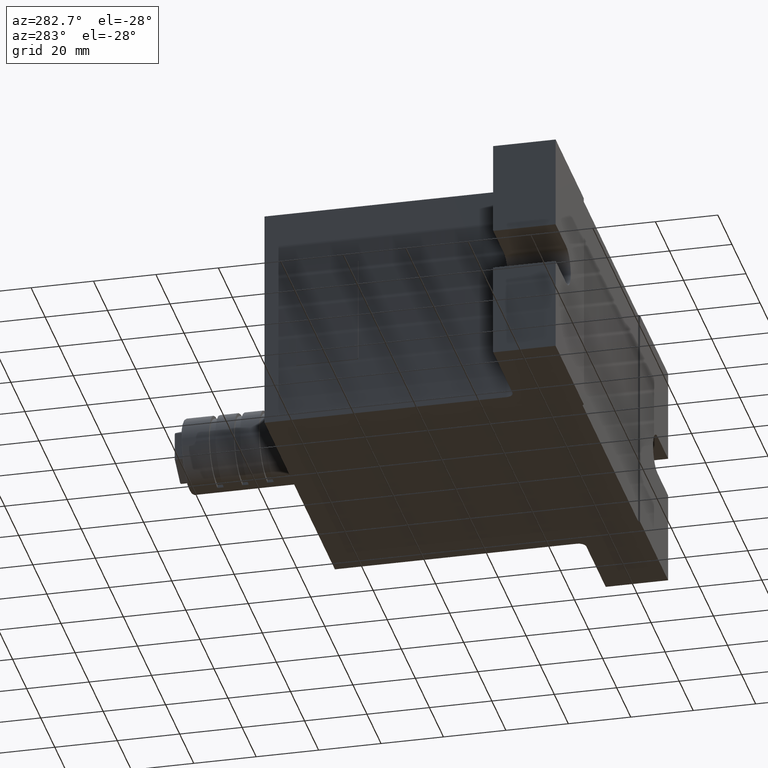
[diagram: clean part render]
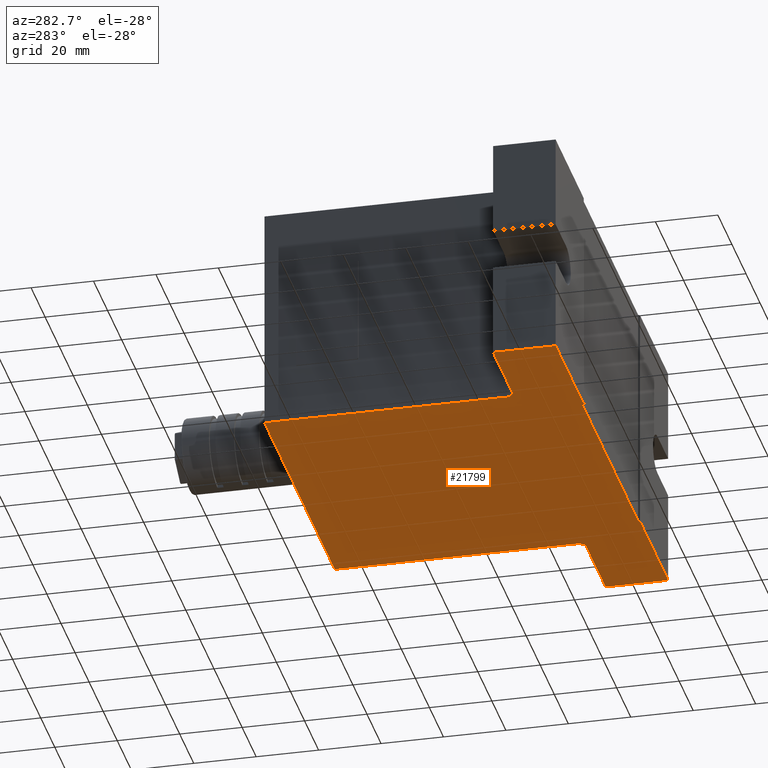
[diagram: same view with one face highlighted and labeled with its STEP entity id]
A machine part, auxiliary view. The second image highlights one B-rep face of the part: STEP entity #21799.
In plain terms, the highlighted planar face has unit normal (0, -0, -1).
Its self-contained STEP definition (entity closure, byte-faithful):
#341 = LINE ( 'NONE', #13127, #15238 ) ;
#428 = ORIENTED_EDGE ( 'NONE', *, *, #13379, .T. ) ;
#433 = VERTEX_POINT ( 'NONE', #16648 ) ;
#743 = LINE ( 'NONE', #1243, #6703 ) ;
#830 = ORIENTED_EDGE ( 'NONE', *, *, #16819, .T. ) ;
#927 = CARTESIAN_POINT ( 'NONE',  ( -80.00000000000000000, -50.00000000000000000, -36.50000000000007800 ) ) ;
#965 = VERTEX_POINT ( 'NONE', #21903 ) ;
#1243 = CARTESIAN_POINT ( 'NONE',  ( -50.00000000000000700, 50.00000000000000000, -36.50000000000000000 ) ) ;
#1269 = CARTESIAN_POINT ( 'NONE',  ( -52.49999999999999300, -30.00000000000000000, -36.50000000000000000 ) ) ;
#1616 = EDGE_CURVE ( 'NONE', #4111, #433, #22802, .T. ) ;
#1669 = ORIENTED_EDGE ( 'NONE', *, *, #17241, .F. ) ;
#1964 = ORIENTED_EDGE ( 'NONE', *, *, #4704, .F. ) ;
#2130 = LINE ( 'NONE', #5519, #11381 ) ;
#2271 = VECTOR ( 'NONE', #16634, 1000.000000000000000 ) ;
#2380 = VECTOR ( 'NONE', #4731, 1000.000000000000000 ) ;
#2673 = DIRECTION ( 'NONE',  ( 1.627025617018336800E-030, -8.801438384760311500E-031, -1.000000000000000000 ) ) ;
#3454 = DIRECTION ( 'NONE',  ( 1.000000000000000000, 0.0000000000000000000, 1.627025617018336800E-030 ) ) ;
#3532 = ORIENTED_EDGE ( 'NONE', *, *, #12460, .T. ) ;
#3611 = CARTESIAN_POINT ( 'NONE',  ( -52.49999999999999300, -27.50000000000000000, -36.50000000000000000 ) ) ;
#3699 = DIRECTION ( 'NONE',  ( 1.000000000000000000, 0.0000000000000000000, 1.627025617018336800E-030 ) ) ;
#4111 = VERTEX_POINT ( 'NONE', #927 ) ;
#4355 = DIRECTION ( 'NONE',  ( -1.000000000000000000, 0.0000000000000000000, -1.627025617018336800E-030 ) ) ;
#4428 = AXIS2_PLACEMENT_3D ( 'NONE', #22848, #11475, #15310 ) ;
#4704 = EDGE_CURVE ( 'NONE', #16450, #4111, #8230, .T. ) ;
#4731 = DIRECTION ( 'NONE',  ( 1.000000000000000000, 0.0000000000000000000, 1.627025617018336800E-030 ) ) ;
#5519 = CARTESIAN_POINT ( 'NONE',  ( 39.50000000000000700, -49.50000000000000000, -36.50000000000007800 ) ) ;
#5627 = VERTEX_POINT ( 'NONE', #6437 ) ;
#5783 = CARTESIAN_POINT ( 'NONE',  ( 80.00000000000000000, -30.00000000000000000, -36.50000000000000000 ) ) ;
#5792 = CIRCLE ( 'NONE', #4428, 2.500000000000002200 ) ;
#5812 = CARTESIAN_POINT ( 'NONE',  ( 49.99999999999999300, 50.00000000000017100, -36.50000000000007800 ) ) ;
#6227 = EDGE_CURVE ( 'NONE', #18773, #965, #6363, .T. ) ;
#6363 = LINE ( 'NONE', #19712, #18548 ) ;
#6437 = CARTESIAN_POINT ( 'NONE',  ( 50.00000000000000000, -27.50000000000000000, -36.50000000000007800 ) ) ;
#6465 = CARTESIAN_POINT ( 'NONE',  ( -50.00000000000000700, 50.00000000000000000, -36.50000000000000000 ) ) ;
#6585 = VERTEX_POINT ( 'NONE', #9883 ) ;
#6703 = VECTOR ( 'NONE', #18371, 1000.000000000000000 ) ;
#6755 = ORIENTED_EDGE ( 'NONE', *, *, #17231, .T. ) ;
#7226 = VECTOR ( 'NONE', #18817, 1000.000000000000000 ) ;
#7333 = DIRECTION ( 'NONE',  ( 0.0000000000000000000, -1.000000000000000000, -8.801438384760299300E-031 ) ) ;
#7995 = CARTESIAN_POINT ( 'NONE',  ( -39.99999999999999300, -50.00000000000000000, -36.50000000000000000 ) ) ;
#8230 = LINE ( 'NONE', #14887, #24563 ) ;
#8369 = CIRCLE ( 'NONE', #9540, 2.500000000000002200 ) ;
#9006 = LINE ( 'NONE', #15028, #7226 ) ;
#9508 = FACE_OUTER_BOUND ( 'NONE', #23698, .T. ) ;
#9540 = AXIS2_PLACEMENT_3D ( 'NONE', #3611, #14957, #24471 ) ;
#9565 = VERTEX_POINT ( 'NONE', #22486 ) ;
#9883 = CARTESIAN_POINT ( 'NONE',  ( 80.00000000000000000, -30.00000000000000000, -36.50000000000000000 ) ) ;
#10699 = CARTESIAN_POINT ( 'NONE',  ( 80.00000000000000000, -50.00000000000000000, -36.50000000000000000 ) ) ;
#11381 = VECTOR ( 'NONE', #14788, 1000.000000000000000 ) ;
#11475 = DIRECTION ( 'NONE',  ( 1.627025617018336800E-030, 8.801438384760311500E-031, 1.000000000000000000 ) ) ;
#11865 = PLANE ( 'NONE',  #19951 ) ;
#12169 = DIRECTION ( 'NONE',  ( -1.000000000000000000, -8.673617379884035500E-017, -1.700981326882806700E-030 ) ) ;
#12194 = VECTOR ( 'NONE', #17008, 1000.000000000000000 ) ;
#12353 = LINE ( 'NONE', #7995, #17115 ) ;
#12460 = EDGE_CURVE ( 'NONE', #9565, #23623, #743, .T. ) ;
#12816 = CARTESIAN_POINT ( 'NONE',  ( -80.00000000000000000, -50.00000000000000000, -36.50000000000007800 ) ) ;
#13113 = ORIENTED_EDGE ( 'NONE', *, *, #23822, .T. ) ;
#13127 = CARTESIAN_POINT ( 'NONE',  ( -80.00000000000000000, -50.00000000000000000, -36.50000000000007800 ) ) ;
#13194 = CARTESIAN_POINT ( 'NONE',  ( 80.00000000000000000, -50.00000000000000000, -36.50000000000000000 ) ) ;
#13265 = LINE ( 'NONE', #15612, #17982 ) ;
#13379 = EDGE_CURVE ( 'NONE', #965, #433, #12353, .T. ) ;
#13697 = DIRECTION ( 'NONE',  ( -1.000000000000000000, 0.0000000000000000000, -1.627025617018336800E-030 ) ) ;
#13878 = CARTESIAN_POINT ( 'NONE',  ( 40.00000000000000700, -50.00000000000000000, -36.50000000000007800 ) ) ;
#14190 = EDGE_CURVE ( 'NONE', #21968, #6585, #20645, .T. ) ;
#14297 = ORIENTED_EDGE ( 'NONE', *, *, #23860, .T. ) ;
#14788 = DIRECTION ( 'NONE',  ( -0.7071067811865670000, 0.7071067811865280300, -5.854827030937197000E-031 ) ) ;
#14887 = CARTESIAN_POINT ( 'NONE',  ( -80.00000000000000000, -50.00000000000000000, -36.50000000000007800 ) ) ;
#14957 = DIRECTION ( 'NONE',  ( 1.627025617018336800E-030, 8.801438384760311500E-031, 1.000000000000000000 ) ) ;
#15028 = CARTESIAN_POINT ( 'NONE',  ( 49.99999999999999300, 50.00000000000017100, -36.50000000000007800 ) ) ;
#15238 = VECTOR ( 'NONE', #3454, 1000.000000000000000 ) ;
#15310 = DIRECTION ( 'NONE',  ( -1.000000000000000000, 0.0000000000000000000, 0.0000000000000000000 ) ) ;
#15612 = CARTESIAN_POINT ( 'NONE',  ( -79.99999999999982900, 50.00000000000017100, -36.50000000000007800 ) ) ;
#15825 = CARTESIAN_POINT ( 'NONE',  ( -80.00000000000000000, -30.00000000000000000, -36.50000000000007800 ) ) ;
#16370 = ORIENTED_EDGE ( 'NONE', *, *, #14190, .T. ) ;
#16450 = VERTEX_POINT ( 'NONE', #15825 ) ;
#16634 = DIRECTION ( 'NONE',  ( 1.000000000000000000, 0.0000000000000000000, 1.627025617018336800E-030 ) ) ;
#16648 = CARTESIAN_POINT ( 'NONE',  ( -39.99999999999999300, -50.00000000000000000, -36.50000000000000000 ) ) ;
#16819 = EDGE_CURVE ( 'NONE', #5627, #21968, #5792, .T. ) ;
#16831 = VERTEX_POINT ( 'NONE', #5812 ) ;
#17008 = DIRECTION ( 'NONE',  ( 0.0000000000000000000, 1.000000000000000000, 8.801438384760299300E-031 ) ) ;
#17077 = ORIENTED_EDGE ( 'NONE', *, *, #20754, .T. ) ;
#17115 = VECTOR ( 'NONE', #23019, 1000.000000000000100 ) ;
#17231 = EDGE_CURVE ( 'NONE', #21917, #9565, #8369, .T. ) ;
#17241 = EDGE_CURVE ( 'NONE', #23542, #19897, #341, .T. ) ;
#17646 = CARTESIAN_POINT ( 'NONE',  ( -79.99999999999982900, 50.00000000000017100, -36.50000000000007800 ) ) ;
#17982 = VECTOR ( 'NONE', #13697, 1000.000000000000000 ) ;
#18271 = EDGE_CURVE ( 'NONE', #16831, #23623, #13265, .T. ) ;
#18371 = DIRECTION ( 'NONE',  ( 0.0000000000000000000, 1.000000000000000000, 8.801438384760299300E-031 ) ) ;
#18548 = VECTOR ( 'NONE', #12169, 1000.000000000000000 ) ;
#18773 = VERTEX_POINT ( 'NONE', #24608 ) ;
#18817 = DIRECTION ( 'NONE',  ( 0.0000000000000000000, -1.000000000000000000, -8.801438384760299300E-031 ) ) ;
#19252 = ORIENTED_EDGE ( 'NONE', *, *, #1616, .F. ) ;
#19712 = CARTESIAN_POINT ( 'NONE',  ( -39.99999999999999300, -49.50000000000000000, -36.50000000000000000 ) ) ;
#19897 = VERTEX_POINT ( 'NONE', #10699 ) ;
#19951 = AXIS2_PLACEMENT_3D ( 'NONE', #17646, #2673, #4355 ) ;
#19988 = CARTESIAN_POINT ( 'NONE',  ( 52.50000000000000700, -30.00000000000000000, -36.50000000000007800 ) ) ;
#20130 = EDGE_CURVE ( 'NONE', #19897, #6585, #24646, .T. ) ;
#20310 = ORIENTED_EDGE ( 'NONE', *, *, #6227, .T. ) ;
#20645 = LINE ( 'NONE', #5783, #24189 ) ;
#20754 = EDGE_CURVE ( 'NONE', #16450, #21917, #22631, .T. ) ;
#21488 = ORIENTED_EDGE ( 'NONE', *, *, #20130, .F. ) ;
#21799 = ADVANCED_FACE ( 'NONE', ( #9508 ), #11865, .T. ) ;
#21903 = CARTESIAN_POINT ( 'NONE',  ( -39.49999999999999300, -49.50000000000000000, -36.50000000000000000 ) ) ;
#21917 = VERTEX_POINT ( 'NONE', #1269 ) ;
#21968 = VERTEX_POINT ( 'NONE', #19988 ) ;
#22486 = CARTESIAN_POINT ( 'NONE',  ( -50.00000000000000000, -27.50000000000000000, -36.50000000000000000 ) ) ;
#22631 = LINE ( 'NONE', #23842, #2380 ) ;
#22802 = LINE ( 'NONE', #12816, #2271 ) ;
#22848 = CARTESIAN_POINT ( 'NONE',  ( 52.50000000000000700, -27.50000000000000000, -36.50000000000007800 ) ) ;
#23019 = DIRECTION ( 'NONE',  ( -0.7071067811865474600, -0.7071067811865474600, -1.627025617018335400E-030 ) ) ;
#23464 = ORIENTED_EDGE ( 'NONE', *, *, #18271, .F. ) ;
#23542 = VERTEX_POINT ( 'NONE', #13878 ) ;
#23623 = VERTEX_POINT ( 'NONE', #6465 ) ;
#23698 = EDGE_LOOP ( 'NONE', ( #20310, #428, #19252, #1964, #17077, #6755, #3532, #23464, #13113, #830, #16370, #21488, #1669, #14297 ) ) ;
#23822 = EDGE_CURVE ( 'NONE', #16831, #5627, #9006, .T. ) ;
#23842 = CARTESIAN_POINT ( 'NONE',  ( -80.00000000000000000, -30.00000000000000000, -36.50000000000007800 ) ) ;
#23860 = EDGE_CURVE ( 'NONE', #23542, #18773, #2130, .T. ) ;
#24189 = VECTOR ( 'NONE', #3699, 1000.000000000000000 ) ;
#24471 = DIRECTION ( 'NONE',  ( -1.000000000000000000, 0.0000000000000000000, 0.0000000000000000000 ) ) ;
#24563 = VECTOR ( 'NONE', #7333, 1000.000000000000000 ) ;
#24608 = CARTESIAN_POINT ( 'NONE',  ( 39.50000000000000700, -49.50000000000000000, -36.50000000000007800 ) ) ;
#24646 = LINE ( 'NONE', #13194, #12194 ) ;